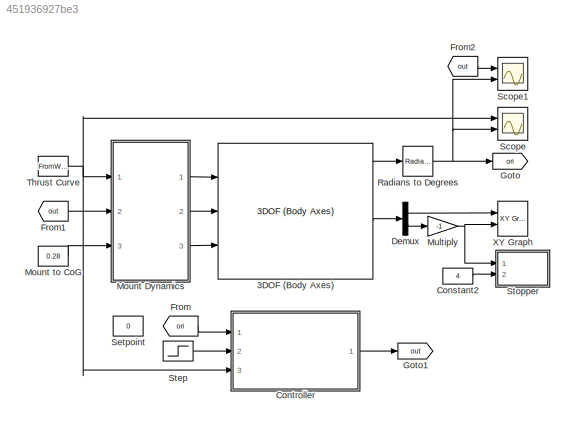
MODEL slx_451936927be3
KIND model
CONFIG AbsTol = auto
CONFIG EnableMultiTasking = off
CONFIG FixedStep = auto
CONFIG MaxStep = auto
CONFIG MinStep = auto
CONFIG RelTol = 1e-3
CONFIG SampleTimeConstraint = Unconstrained
CONFIG SolverName = VariableStepAuto
CONFIG StartTime = 0.0
CONFIG StopTime = 20.0
WORKSPACE source: mxarray member
WORKSPACE F10 = [0 0.015 0.077 0.201 0.31 0.464 0.573 0.789 1.068 1.393 1.718 2.166 ... (58 elements, 29x2)]
WORKSPACE iterSeed = 0
WORKSPACE mountMax = 0.5
BLOCK [Reference] 3DOF (Body Axes)  REF=shared3dof/3DOF (Body Axes)
  Ports = [3, 6]
  SourceBlock = shared3dof/3DOF (Body Axes)
  SourceProductBaseCode = AE,PW,MT,UV,VE,VP
  SourceType = 3DOF EoM
BLOCK [Constant] Constant2
  Value = 4
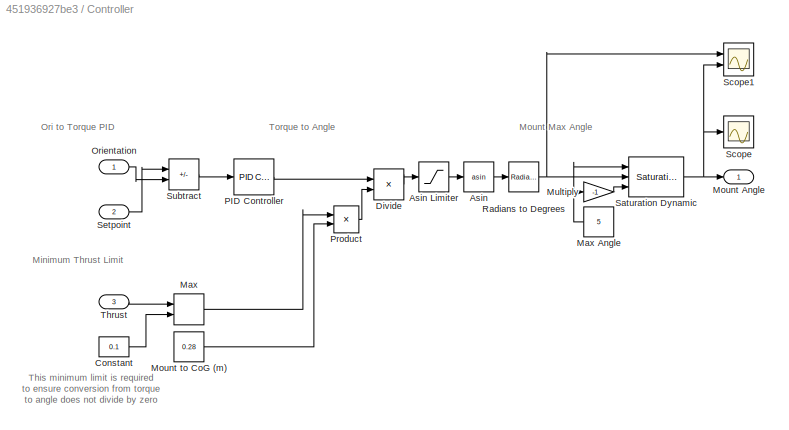
BLOCK [SubSystem] Controller
  Ports = [3, 1]
  RequestExecContextInheritance = off
BLOCK [Trigonometry] Controller/Asin
  Operator = asin
  Ports = [1, 1]
BLOCK [Saturate] Controller/Asin Limiter
  LowerLimit = -1
  UpperLimit = 1
BLOCK [Constant] Controller/Constant
  Value = 0.1
BLOCK [Product] Controller/Divide
  Inputs = */
  Ports = [2, 1]
BLOCK [MinMax] Controller/Max
  Function = max
  Inputs = 2
  Ports = [2, 1]
BLOCK [Constant] Controller/Max Angle
  Value = 5
BLOCK [Outport] Controller/Mount Angle
BLOCK [Constant] Controller/Mount to CoG (m)
  Value = 0.28
BLOCK [Gain] Controller/Multiply
  Gain = -1
BLOCK [Inport] Controller/Orientation
BLOCK [Reference] Controller/PID Controller  REF=pid_lib/PID Controller
  Ports = [1, 1]
  SourceBlock = pid_lib/PID Controller
  SourceProductBaseCode = SL
  SourceType = PID 1dof
BLOCK [Product] Controller/Product
  Ports = [2, 1]
BLOCK [Reference] Controller/Radians to Degrees  REF=simulink_extras/Transformations/Radians
to Degrees
  Ports = [1, 1]
  SourceBlock = simulink_extras/Transformations/Radians\nto Degrees
  SourceProductBaseCode = SL
  SourceType = RadiansToDegrees
BLOCK [Reference] Controller/Saturation Dynamic  REF=simulink/Discontinuities/Saturation
Dynamic
  Ports = [3, 1]
  SourceBlock = simulink/Discontinuities/Saturation\nDynamic
  SourceProductBaseCode = SL
  SourceType = Saturation Dynamic
BLOCK [Scope] Controller/Scope
  Floating = off
  NumInputPorts = 1
  Ports = [1]
  ScopeSpecificationString = Simulink.scopes.TimeScopeBlockCfg('CurrentConfiguration', extmgr.ConfigurationSet(extmgr.Configuration('Core','General UI',true),extmgr.Configuration('Core','Source UI',true),extmgr.Configuration('Sources','WiredSimulink',true,'DataLoggingVariableName','ScopeData1'),extmgr.Configuration('Visuals','Time Domain',true,'SerializedDisplays',{struct('MinYLimReal','-0.32095','MaxYLimReal','1.3419','YLabe...<+1422ch>
BLOCK [Scope] Controller/Scope1
  Floating = off
  NumInputPorts = 2
  Ports = [2]
  ScopeSpecificationString = Simulink.scopes.TimeScopeBlockCfg('CurrentConfiguration', extmgr.ConfigurationSet(extmgr.Configuration('Core','General UI',true),extmgr.Configuration('Core','Source UI',true),extmgr.Configuration('Sources','WiredSimulink',true,'DataLoggingVariableName','ScopeData1'),extmgr.Configuration('Visuals','Time Domain',true,'SerializedDisplays',{struct('MinYLimReal','-112.5','MaxYLimReal','112.5','YLabelRe...<+1415ch>
BLOCK [Inport] Controller/Setpoint
  Port = 2
BLOCK [Sum] Controller/Subtract
  IconShape = rectangular
  Inputs = +-
  Ports = [2, 1]
BLOCK [Inport] Controller/Thrust
  Port = 3
BLOCK [Demux] Demux
  Outputs = 2
  Ports = [1, 2]
BLOCK [From] From
  GotoTag = ori
BLOCK [From] From1
  GotoTag = out
BLOCK [From] From2
  GotoTag = out
BLOCK [Goto] Goto
  GotoTag = ori
BLOCK [Goto] Goto1
  GotoTag = out
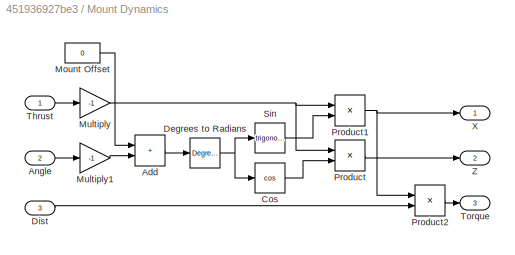
BLOCK [SubSystem] Mount Dynamics
  Ports = [3, 3]
  RequestExecContextInheritance = off
BLOCK [Sum] Mount Dynamics/Add
  IconShape = rectangular
  Ports = [2, 1]
BLOCK [Inport] Mount Dynamics/Angle
  Port = 2
BLOCK [Trigonometry] Mount Dynamics/Cos
  Operator = cos
  Ports = [1, 1]
BLOCK [Reference] Mount Dynamics/Degrees to Radians  REF=simulink_extras/Transformations/Degrees to
Radians
  Ports = [1, 1]
  SourceBlock = simulink_extras/Transformations/Degrees to\nRadians
  SourceProductBaseCode = SL
  SourceType = DegreesToRadians
BLOCK [Inport] Mount Dynamics/Dist
  Port = 3
BLOCK [Constant] Mount Dynamics/Mount Offset
  Value = 0
BLOCK [Gain] Mount Dynamics/Multiply
  Gain = -1
BLOCK [Gain] Mount Dynamics/Multiply1
  Gain = -1
BLOCK [Product] Mount Dynamics/Product
  Ports = [2, 1]
BLOCK [Product] Mount Dynamics/Product1
  Ports = [2, 1]
BLOCK [Product] Mount Dynamics/Product2
  Ports = [2, 1]
BLOCK [Trigonometry] Mount Dynamics/Sin
  Ports = [1, 1]
BLOCK [Inport] Mount Dynamics/Thrust
BLOCK [Outport] Mount Dynamics/Torque
  Port = 3
BLOCK [Outport] Mount Dynamics/X
BLOCK [Outport] Mount Dynamics/Z
  Port = 2
BLOCK [Constant] Mount to CoG
  Value = 0.28
BLOCK [Gain] Multiply
  Gain = -1
BLOCK [Reference] Radians to Degrees  REF=simulink_extras/Transformations/Radians
to Degrees
  Ports = [1, 1]
  SourceBlock = simulink_extras/Transformations/Radians\nto Degrees
  SourceProductBaseCode = SL
  SourceType = RadiansToDegrees
BLOCK [Scope] Scope
  Floating = off
  NumInputPorts = 2
  Ports = [2]
  ScopeSpecificationString = Simulink.scopes.TimeScopeBlockCfg('CurrentConfiguration', extmgr.ConfigurationSet(extmgr.Configuration('Core','General UI',true),extmgr.Configuration('Core','Source UI',true),extmgr.Configuration('Sources','WiredSimulink',true),extmgr.Configuration('Visuals','Time Domain',true,'SerializedDisplays',{struct('MinYLimReal','-33.81148','MaxYLimReal','43.64754','YLabelReal','','MinYLimMag','0.00000','Ma...<+1432ch>
BLOCK [Scope] Scope1
  Floating = off
  NumInputPorts = 2
  Ports = [2]
  ScopeSpecificationString = Simulink.scopes.TimeScopeBlockCfg('CurrentConfiguration', extmgr.ConfigurationSet(extmgr.Configuration('Core','General UI',true),extmgr.Configuration('Core','Source UI',true),extmgr.Configuration('Sources','WiredSimulink',true,'DataLoggingVariableName','ScopeData1'),extmgr.Configuration('Visuals','Time Domain',true,'SerializedDisplays',{struct('MinYLimReal','-6.40012','MaxYLimReal','7.6011','YLabe...<+1413ch>
BLOCK [Constant] Setpoint
  Value = 0
BLOCK [Step] Step
  After = 5
  Before = 1
  SampleTime = 0
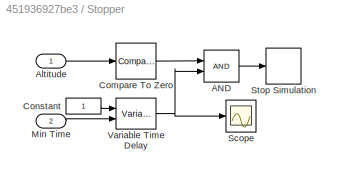
BLOCK [SubSystem] Stopper
  Ports = [2]
  RequestExecContextInheritance = off
BLOCK [Logic] Stopper/AND
  AllPortsSameDT = off
  IconShape = distinctive
  OutDataTypeStr = boolean
  Ports = [2, 1]
BLOCK [Inport] Stopper/Altitude
BLOCK [Reference] Stopper/Compare To Zero  REF=simulink/Logic and Bit
Operations/Compare
To Zero
  Ports = [1, 1]
  SourceBlock = simulink/Logic and Bit\nOperations/Compare\nTo Zero
  SourceProductBaseCode = SL
  SourceType = Compare To Zero
BLOCK [Constant] Stopper/Constant
BLOCK [Inport] Stopper/Min Time
  Port = 2
BLOCK [Scope] Stopper/Scope
  Floating = off
  NumInputPorts = 1
  Ports = [1]
  ScopeSpecificationString = Simulink.scopes.TimeScopeBlockCfg('CurrentConfiguration', extmgr.ConfigurationSet(extmgr.Configuration('Core','General UI',true),extmgr.Configuration('Core','Source UI',true),extmgr.Configuration('Sources','WiredSimulink',true,'DataLoggingVariableName','ScopeData1'),extmgr.Configuration('Visuals','Time Domain',true,'SerializedDisplays',{struct('MinYLimReal','-0.125','MaxYLimReal','1.125','YLabelRe...<+1396ch>
BLOCK [Stop] Stopper/Stop Simulation
BLOCK [VariableTransportDelay] Stopper/Variable Time Delay
  MaximumDelay = 10
  Ports = [2, 1]
BLOCK [FromWorkspace] Thrust Curve
  VariableName = F15
BLOCK [Reference] XY Graph  REF=simulink/Sinks/XY Graph
  Ports = [2]
  SourceBlock = simulink/Sinks/XY Graph
  SourceProductBaseCode = SL
  SourceType = XY scope.
ANNOTATION Controller: Minimum Thrust Limit
ANNOTATION Controller: Mount Max Angle
ANNOTATION Controller: Ori to Torque PID
ANNOTATION Controller: This minimum limit is required to ensure conversion from torque to angle does not divide by zero
ANNOTATION Controller: Torque to Angle
LINE 3DOF (Body Axes):1 -> Radians to Degrees:1
LINE 3DOF (Body Axes):4 -> Demux:1
LINE Constant2:1 -> Stopper:2
LINE Controller/Asin Limiter:1 -> Controller/Asin:1
LINE Controller/Asin:1 -> Controller/Radians to Degrees:1
LINE Controller/Constant:1 -> Controller/Max:2
LINE Controller/Divide:1 -> Controller/Asin Limiter:1
NET Controller/Max Angle:1 -> Controller/Multiply:1, Controller/Saturation Dynamic:1
LINE Controller/Max:1 -> Controller/Product:1
LINE Controller/Mount to CoG (m):1 -> Controller/Product:2
LINE Controller/Multiply:1 -> Controller/Saturation Dynamic:3
LINE Controller/Orientation:1 -> Controller/Subtract:2
LINE Controller/PID Controller:1 -> Controller/Divide:1
LINE Controller/Product:1 -> Controller/Divide:2
NET Controller/Radians to Degrees:1 -> Controller/Saturation Dynamic:2, Controller/Scope1:1
NET Controller/Saturation Dynamic:1 -> Controller/Mount Angle:1, Controller/Scope1:2, Controller/Scope:1
LINE Controller/Setpoint:1 -> Controller/Subtract:1
LINE Controller/Subtract:1 -> Controller/PID Controller:1
LINE Controller/Thrust:1 -> Controller/Max:1
LINE Controller:1 -> Goto1:1
LINE Demux:1 -> XY Graph:1
LINE Demux:2 -> Multiply:1
LINE From1:1 -> Mount Dynamics:2
LINE From2:1 -> Scope1:1
LINE From:1 -> Controller:1
LINE Mount Dynamics/Add:1 -> Mount Dynamics/Degrees to Radians:1
LINE Mount Dynamics/Angle:1 -> Mount Dynamics/Multiply1:1
LINE Mount Dynamics/Cos:1 -> Mount Dynamics/Product:2
NET Mount Dynamics/Degrees to Radians:1 -> Mount Dynamics/Cos:1, Mount Dynamics/Sin:1
LINE Mount Dynamics/Dist:1 -> Mount Dynamics/Product2:2
LINE Mount Dynamics/Mount Offset:1 -> Mount Dynamics/Add:1
LINE Mount Dynamics/Multiply1:1 -> Mount Dynamics/Add:2
NET Mount Dynamics/Multiply:1 -> Mount Dynamics/Product1:1, Mount Dynamics/Product:1
NET Mount Dynamics/Product1:1 -> Mount Dynamics/Product2:1, Mount Dynamics/X:1
LINE Mount Dynamics/Product2:1 -> Mount Dynamics/Torque:1
LINE Mount Dynamics/Product:1 -> Mount Dynamics/Z:1
LINE Mount Dynamics/Sin:1 -> Mount Dynamics/Product1:2
LINE Mount Dynamics/Thrust:1 -> Mount Dynamics/Multiply:1
LINE Mount Dynamics:1 -> 3DOF (Body Axes):1
LINE Mount Dynamics:2 -> 3DOF (Body Axes):2
LINE Mount Dynamics:3 -> 3DOF (Body Axes):3
LINE Mount to CoG:1 -> Mount Dynamics:3
NET Multiply:1 -> Stopper:1, XY Graph:2
NET Radians to Degrees:1 -> Goto:1, Scope1:2, Scope:2
LINE Step:1 -> Controller:2
LINE Stopper/AND:1 -> Stopper/Stop Simulation:1
LINE Stopper/Altitude:1 -> Stopper/Compare To Zero:1
LINE Stopper/Compare To Zero:1 -> Stopper/AND:1
LINE Stopper/Constant:1 -> Stopper/Variable Time Delay:1
LINE Stopper/Min Time:1 -> Stopper/Variable Time Delay:2
NET Stopper/Variable Time Delay:1 -> Stopper/AND:2, Stopper/Scope:1
NET Thrust Curve:1 -> Controller:3, Mount Dynamics:1, Scope:1
note: NET lines group one-source signal fan-out (src -> all destinations, sorted); 1:1 wires keep LINE
